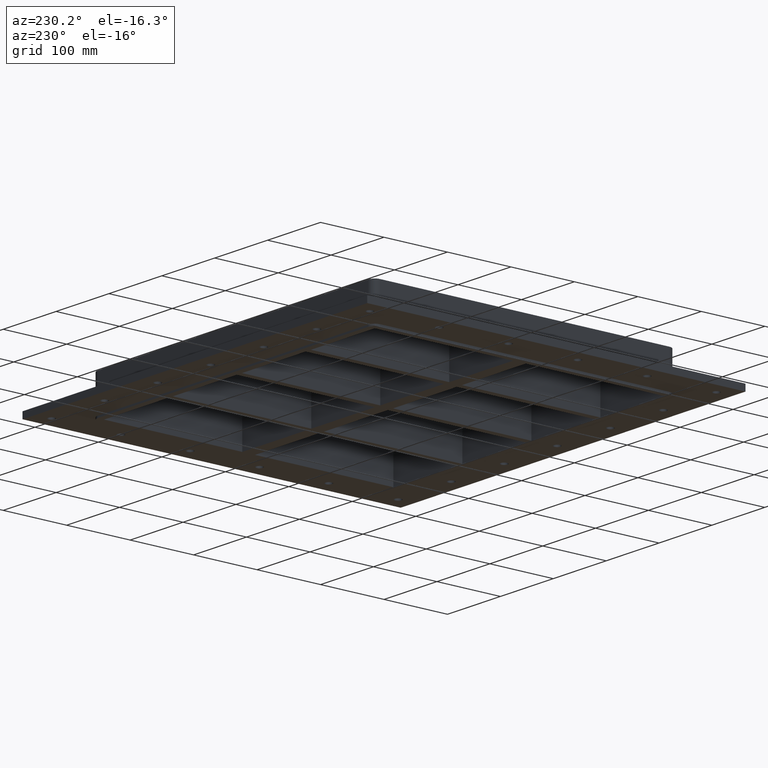
[diagram: clean part render]
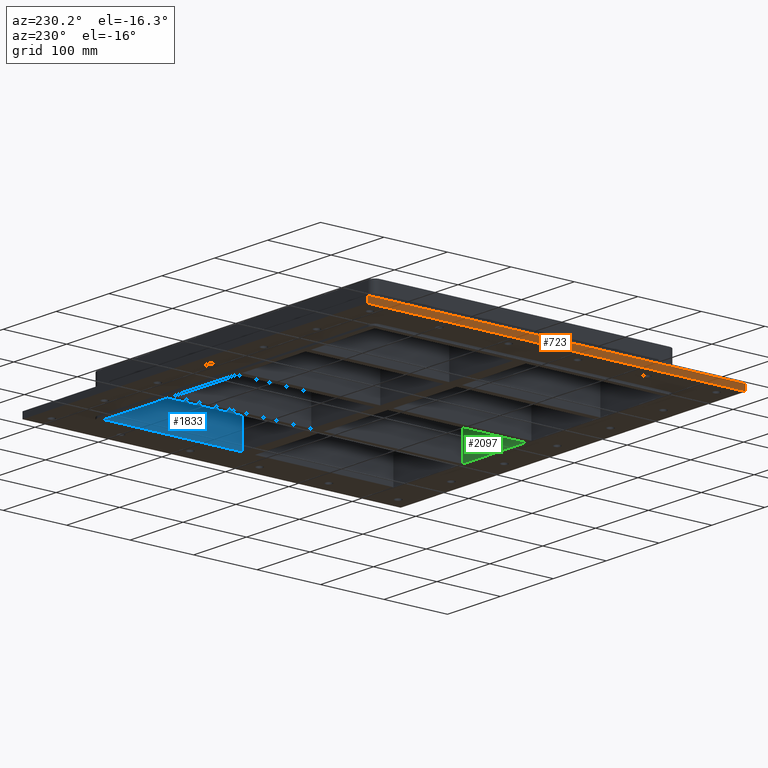
[diagram: same view with three faces highlighted in distinct colors, each labeled with its STEP entity id]
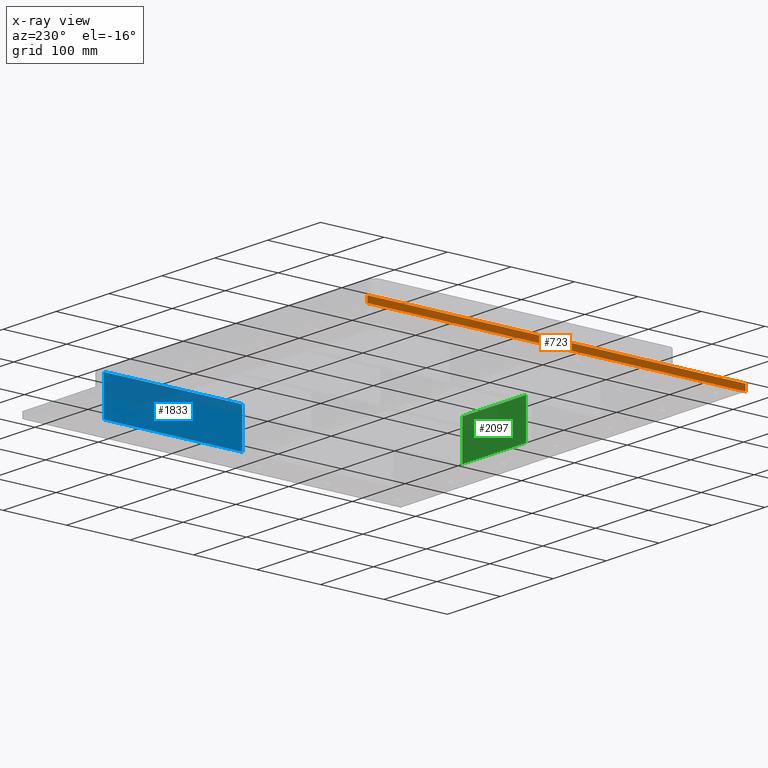
[diagram: x-ray of the same camera — body ghosted, the three highlighted faces saturated]
A machine part, auxiliary view with three faces highlighted in distinct colors.
The next image is the same camera in x-ray (body ghosted, the three faces saturated) — at least one of them is partly hidden behind the body in this view.
Their STEP definitions:

[orange] entity #723 — the highlighted planar face has unit normal (-1, 0, 0).
#684=CARTESIAN_POINT('',(-326.00000000000011,298.0,-27.0));
#685=DIRECTION('',(-1.0,0.0,0.0));
#686=DIRECTION('',(0.0,-1.0,0.0));
#687=AXIS2_PLACEMENT_3D('',#684,#685,#686);
#688=PLANE('',#687);
#689=CARTESIAN_POINT('',(-326.0,-298.00000000000006,-27.0));
#690=VERTEX_POINT('',#689);
#691=CARTESIAN_POINT('',(-326.00000000000011,298.0,-27.0));
#692=VERTEX_POINT('',#691);
#693=CARTESIAN_POINT('',(-326.0,-298.00000000000006,-27.0));
#694=DIRECTION('',(0.0,1.0,0.0));
#695=VECTOR('',#694,596.00000000000011);
#696=LINE('',#693,#695);
#697=EDGE_CURVE('',#690,#692,#696,.T.);
#698=ORIENTED_EDGE('',*,*,#697,.F.);
#699=CARTESIAN_POINT('',(-326.00000000000011,-298.00000000000006,-17.0));
#700=VERTEX_POINT('',#699);
#701=CARTESIAN_POINT('',(-326.0,-298.00000000000006,-27.0));
#702=DIRECTION('',(0.0,0.0,1.0));
#703=VECTOR('',#702,10.0);
#704=LINE('',#701,#703);
#705=EDGE_CURVE('',#690,#700,#704,.T.);
#706=ORIENTED_EDGE('',*,*,#705,.T.);
#707=CARTESIAN_POINT('',(-326.00000000000011,298.0,-17.0));
#708=VERTEX_POINT('',#707);
#709=CARTESIAN_POINT('',(-326.00000000000006,298.00000000000006,-17.0));
#710=DIRECTION('',(0.0,-1.0,0.0));
#711=VECTOR('',#710,596.00000000000011);
#712=LINE('',#709,#711);
#713=EDGE_CURVE('',#708,#700,#712,.T.);
#714=ORIENTED_EDGE('',*,*,#713,.F.);
#715=CARTESIAN_POINT('',(-326.00000000000011,298.0,-27.0));
#716=DIRECTION('',(0.0,0.0,1.0));
#717=VECTOR('',#716,10.0);
#718=LINE('',#715,#717);
#719=EDGE_CURVE('',#692,#708,#718,.T.);
#720=ORIENTED_EDGE('',*,*,#719,.F.);
#721=EDGE_LOOP('',(#698,#706,#714,#720));
#722=FACE_OUTER_BOUND('',#721,.T.);
#723=ADVANCED_FACE('',(#722),#688,.T.);

[blue] entity #1833 — the highlighted planar face has unit normal (1, 0, 0).
#1384=CARTESIAN_POINT('',(256.00000000000006,9.999999999999929,-30.0));
#1385=VERTEX_POINT('',#1384);
#1392=CARTESIAN_POINT('',(256.0,227.99999999999994,-30.0));
#1393=VERTEX_POINT('',#1392);
#1394=CARTESIAN_POINT('',(256.0,9.999999999999929,-30.0));
#1395=DIRECTION('',(0.0,1.0,0.0));
#1396=VECTOR('',#1395,218.0);
#1397=LINE('',#1394,#1396);
#1398=EDGE_CURVE('',#1385,#1393,#1397,.T.);
#1793=CARTESIAN_POINT('',(256.00000000000006,9.999999999999929,30.0));
#1794=VERTEX_POINT('',#1793);
#1801=CARTESIAN_POINT('',(256.00000000000006,9.999999999999929,30.0));
#1802=DIRECTION('',(0.0,0.0,-1.0));
#1803=VECTOR('',#1802,60.0);
#1804=LINE('',#1801,#1803);
#1805=EDGE_CURVE('',#1794,#1385,#1804,.T.);
#1810=CARTESIAN_POINT('',(256.0,227.99999999999994,30.0));
#1811=DIRECTION('',(1.0,0.0,0.0));
#1812=DIRECTION('',(0.0,-1.0,0.0));
#1813=AXIS2_PLACEMENT_3D('',#1810,#1811,#1812);
#1814=PLANE('',#1813);
#1815=ORIENTED_EDGE('',*,*,#1398,.F.);
#1816=ORIENTED_EDGE('',*,*,#1805,.F.);
#1817=CARTESIAN_POINT('',(256.0,227.99999999999994,30.0));
#1818=VERTEX_POINT('',#1817);
#1819=CARTESIAN_POINT('',(255.99999999999997,227.99999999999994,30.0));
#1820=DIRECTION('',(0.0,-1.0,0.0));
#1821=VECTOR('',#1820,218.0);
#1822=LINE('',#1819,#1821);
#1823=EDGE_CURVE('',#1818,#1794,#1822,.T.);
#1824=ORIENTED_EDGE('',*,*,#1823,.F.);
#1825=CARTESIAN_POINT('',(256.0,227.99999999999994,30.0));
#1826=DIRECTION('',(0.0,0.0,-1.0));
#1827=VECTOR('',#1826,60.0);
#1828=LINE('',#1825,#1827);
#1829=EDGE_CURVE('',#1818,#1393,#1828,.T.);
#1830=ORIENTED_EDGE('',*,*,#1829,.T.);
#1831=EDGE_LOOP('',(#1815,#1816,#1824,#1830));
#1832=FACE_OUTER_BOUND('',#1831,.T.);
#1833=ADVANCED_FACE('',(#1832),#1814,.F.);

[green] entity #2097 — the highlighted planar face has unit normal (0, -1, 0).
#1478=CARTESIAN_POINT('',(5.000000000000107,-228.00000000000011,-30.0));
#1479=VERTEX_POINT('',#1478);
#1486=CARTESIAN_POINT('',(125.50000000000011,-228.00000000000006,-30.0));
#1487=VERTEX_POINT('',#1486);
#1488=CARTESIAN_POINT('',(5.000000000000107,-228.00000000000011,-30.0));
#1489=DIRECTION('',(1.0,0.0,0.0));
#1490=VECTOR('',#1489,120.5);
#1491=LINE('',#1488,#1490);
#1492=EDGE_CURVE('',#1479,#1487,#1491,.T.);
#2057=CARTESIAN_POINT('',(5.000000000000107,-228.00000000000011,30.0));
#2058=VERTEX_POINT('',#2057);
#2065=CARTESIAN_POINT('',(5.000000000000107,-228.00000000000011,30.0));
#2066=DIRECTION('',(0.0,0.0,-1.0));
#2067=VECTOR('',#2066,60.0);
#2068=LINE('',#2065,#2067);
#2069=EDGE_CURVE('',#2058,#1479,#2068,.T.);
#2074=CARTESIAN_POINT('',(125.50000000000011,-228.00000000000006,30.0));
#2075=DIRECTION('',(0.0,-1.0,0.0));
#2076=DIRECTION('',(-1.0,0.0,0.0));
#2077=AXIS2_PLACEMENT_3D('',#2074,#2075,#2076);
#2078=PLANE('',#2077);
#2079=ORIENTED_EDGE('',*,*,#1492,.F.);
#2080=ORIENTED_EDGE('',*,*,#2069,.F.);
#2081=CARTESIAN_POINT('',(125.50000000000011,-228.00000000000006,30.0));
#2082=VERTEX_POINT('',#2081);
#2083=CARTESIAN_POINT('',(125.50000000000011,-228.00000000000006,30.0));
#2084=DIRECTION('',(-1.0,0.0,0.0));
#2085=VECTOR('',#2084,120.5);
#2086=LINE('',#2083,#2085);
#2087=EDGE_CURVE('',#2082,#2058,#2086,.T.);
#2088=ORIENTED_EDGE('',*,*,#2087,.F.);
#2089=CARTESIAN_POINT('',(125.50000000000011,-228.00000000000006,30.0));
#2090=DIRECTION('',(0.0,0.0,-1.0));
#2091=VECTOR('',#2090,60.0);
#2092=LINE('',#2089,#2091);
#2093=EDGE_CURVE('',#2082,#1487,#2092,.T.);
#2094=ORIENTED_EDGE('',*,*,#2093,.T.);
#2095=EDGE_LOOP('',(#2079,#2080,#2088,#2094));
#2096=FACE_OUTER_BOUND('',#2095,.T.);
#2097=ADVANCED_FACE('',(#2096),#2078,.F.);